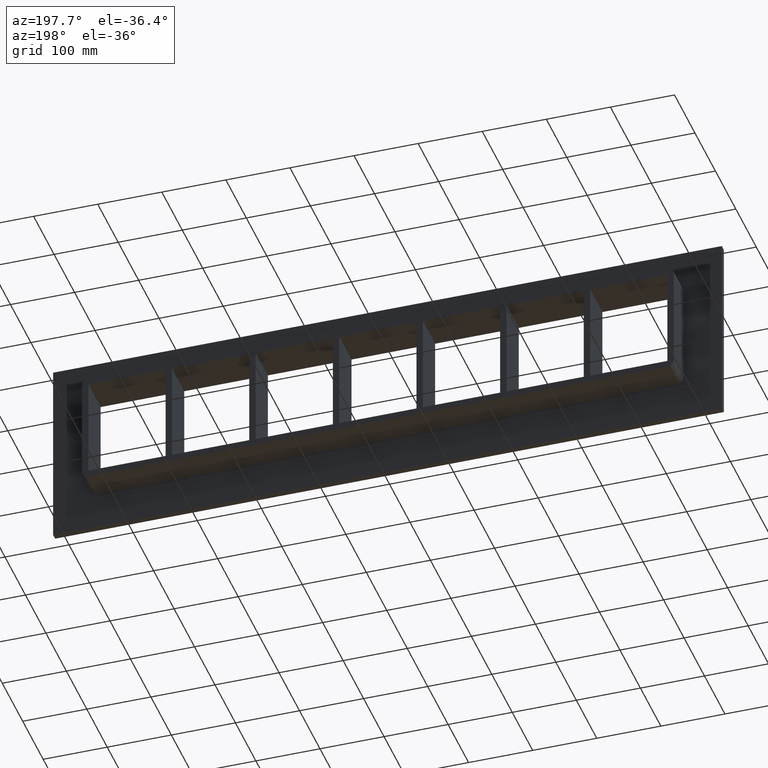
[diagram: clean part render]
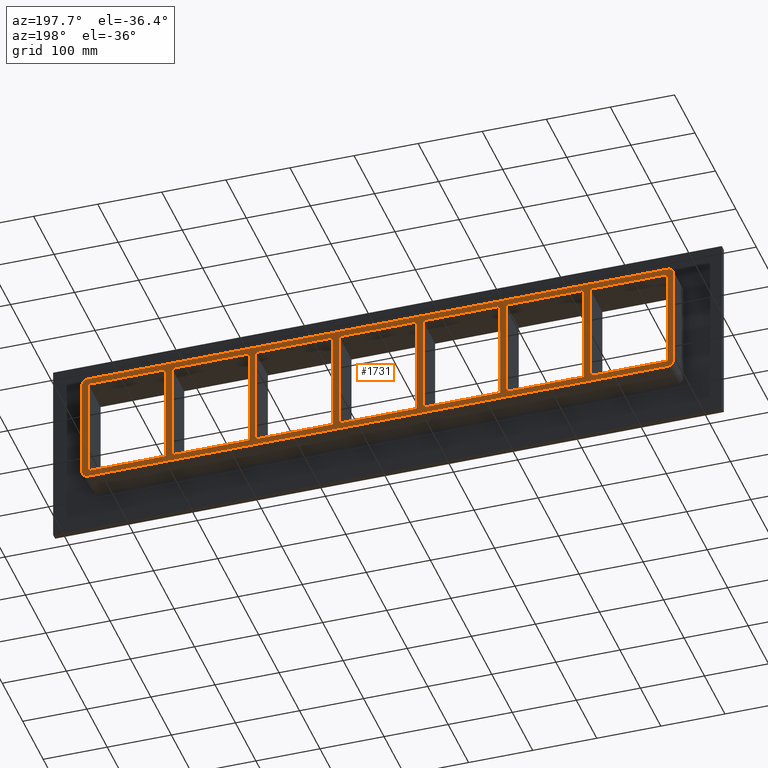
[diagram: same view with one face highlighted and labeled with its STEP entity id]
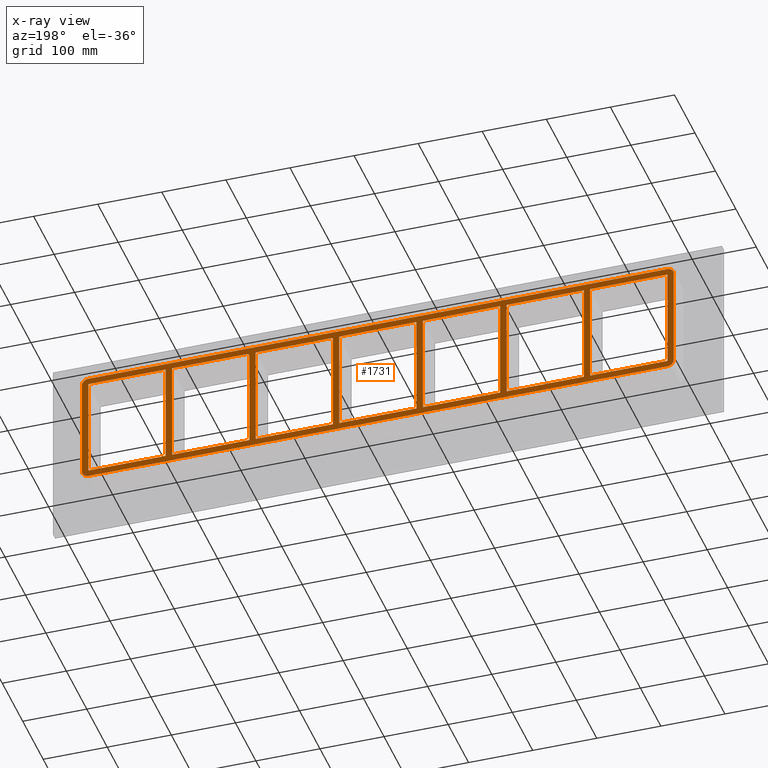
[diagram: x-ray of the same camera — body ghosted, the highlighted face saturated]
A machine part, auxiliary view. The second image highlights one B-rep face of the part: STEP entity #1731.
The next image is the same camera in x-ray: the body ghosted, the highlighted face saturated — about 0% of this face is hidden behind the body in this view.
In plain terms, the highlighted planar face has unit normal (0, 1, 0).
Its self-contained STEP definition (entity closure, byte-faithful):
#83=CARTESIAN_POINT('',(321.24999999999858,57.0,79.750000000000014));
#84=VERTEX_POINT('',#83);
#91=CARTESIAN_POINT('',(321.24999999999858,57.0,-79.75));
#92=VERTEX_POINT('',#91);
#93=CARTESIAN_POINT('',(321.24999999999858,57.0,-79.75));
#94=DIRECTION('',(0.0,0.0,1.0));
#95=VECTOR('',#94,159.5);
#96=LINE('',#93,#95);
#97=EDGE_CURVE('',#92,#84,#96,.T.);
#123=CARTESIAN_POINT('',(331.25,57.0,-79.749999999984055));
#124=VERTEX_POINT('',#123);
#131=CARTESIAN_POINT('',(331.25,57.0,79.750000000000014));
#132=VERTEX_POINT('',#131);
#133=CARTESIAN_POINT('',(331.25,57.0,79.750000000000014));
#134=DIRECTION('',(0.0,0.0,-1.0));
#135=VECTOR('',#134,159.49999999998408);
#136=LINE('',#133,#135);
#137=EDGE_CURVE('',#132,#124,#136,.T.);
#163=CARTESIAN_POINT('',(190.74999999999858,57.0,79.750000000000014));
#164=VERTEX_POINT('',#163);
#171=CARTESIAN_POINT('',(190.74999999999864,57.0,-79.75));
#172=VERTEX_POINT('',#171);
#173=CARTESIAN_POINT('',(190.74999999999864,57.0,-79.75));
#174=DIRECTION('',(0.0,0.0,1.0));
#175=VECTOR('',#174,159.5);
#176=LINE('',#173,#175);
#177=EDGE_CURVE('',#172,#164,#176,.T.);
#203=CARTESIAN_POINT('',(200.75000000000006,57.0,-79.749999999984055));
#204=VERTEX_POINT('',#203);
#211=CARTESIAN_POINT('',(200.75000000000006,57.0,79.750000000000014));
#212=VERTEX_POINT('',#211);
#213=CARTESIAN_POINT('',(200.75000000000006,57.0,79.750000000000014));
#214=DIRECTION('',(0.0,0.0,-1.0));
#215=VECTOR('',#214,159.49999999998408);
#216=LINE('',#213,#215);
#217=EDGE_CURVE('',#212,#204,#216,.T.);
#243=CARTESIAN_POINT('',(60.249999999998565,57.0,79.750000000000014));
#244=VERTEX_POINT('',#243);
#251=CARTESIAN_POINT('',(60.249999999998636,57.0,-79.75));
#252=VERTEX_POINT('',#251);
#253=CARTESIAN_POINT('',(60.249999999998636,57.0,-79.75));
#254=DIRECTION('',(0.0,0.0,1.0));
#255=VECTOR('',#254,159.5);
#256=LINE('',#253,#255);
#257=EDGE_CURVE('',#252,#244,#256,.T.);
#283=CARTESIAN_POINT('',(70.250000000000057,57.0,-79.749999999984055));
#284=VERTEX_POINT('',#283);
#291=CARTESIAN_POINT('',(70.250000000000057,57.0,79.750000000000014));
#292=VERTEX_POINT('',#291);
#293=CARTESIAN_POINT('',(70.250000000000057,57.0,79.750000000000014));
#294=DIRECTION('',(0.0,0.0,-1.0));
#295=VECTOR('',#294,159.49999999998408);
#296=LINE('',#293,#295);
#297=EDGE_CURVE('',#292,#284,#296,.T.);
#323=CARTESIAN_POINT('',(-70.250000000001478,57.0,79.750000000000014));
#324=VERTEX_POINT('',#323);
#331=CARTESIAN_POINT('',(-70.250000000001407,57.0,-79.75));
#332=VERTEX_POINT('',#331);
#333=CARTESIAN_POINT('',(-70.250000000001407,57.0,-79.75));
#334=DIRECTION('',(0.0,0.0,1.0));
#335=VECTOR('',#334,159.5);
#336=LINE('',#333,#335);
#337=EDGE_CURVE('',#332,#324,#336,.T.);
#363=CARTESIAN_POINT('',(-60.249999999999986,57.0,-79.749999999984055));
#364=VERTEX_POINT('',#363);
#371=CARTESIAN_POINT('',(-60.249999999999986,57.0,79.750000000000014));
#372=VERTEX_POINT('',#371);
#373=CARTESIAN_POINT('',(-60.249999999999986,57.0,79.750000000000014));
#374=DIRECTION('',(0.0,0.0,-1.0));
#375=VECTOR('',#374,159.49999999998408);
#376=LINE('',#373,#375);
#377=EDGE_CURVE('',#372,#364,#376,.T.);
#403=CARTESIAN_POINT('',(-200.75000000000148,57.0,79.750000000000014));
#404=VERTEX_POINT('',#403);
#411=CARTESIAN_POINT('',(-200.75000000000142,57.0,-79.75));
#412=VERTEX_POINT('',#411);
#413=CARTESIAN_POINT('',(-200.75000000000142,57.0,-79.75));
#414=DIRECTION('',(0.0,0.0,1.0));
#415=VECTOR('',#414,159.5);
#416=LINE('',#413,#415);
#417=EDGE_CURVE('',#412,#404,#416,.T.);
#443=CARTESIAN_POINT('',(-190.75,57.0,-79.749999999984055));
#444=VERTEX_POINT('',#443);
#451=CARTESIAN_POINT('',(-190.75,57.0,79.750000000000014));
#452=VERTEX_POINT('',#451);
#453=CARTESIAN_POINT('',(-190.75,57.0,79.750000000000014));
#454=DIRECTION('',(0.0,0.0,-1.0));
#455=VECTOR('',#454,159.49999999998408);
#456=LINE('',#453,#455);
#457=EDGE_CURVE('',#452,#444,#456,.T.);
#474=CARTESIAN_POINT('',(-321.25,57.0,-79.749999999984055));
#475=VERTEX_POINT('',#474);
#476=CARTESIAN_POINT('',(-321.24999999999994,57.0,-79.75));
#477=DIRECTION('',(1.0,0.0,0.0));
#478=VECTOR('',#477,120.49999999999852);
#479=LINE('',#476,#478);
#480=EDGE_CURVE('',#475,#412,#479,.T.);
#505=CARTESIAN_POINT('',(-190.75000000000006,57.0,-79.75));
#506=DIRECTION('',(1.0,0.0,0.0));
#507=VECTOR('',#506,120.49999999999864);
#508=LINE('',#505,#507);
#509=EDGE_CURVE('',#444,#332,#508,.T.);
#527=CARTESIAN_POINT('',(-60.25,57.0,-79.75));
#528=DIRECTION('',(1.0,0.0,0.0));
#529=VECTOR('',#528,120.49999999999864);
#530=LINE('',#527,#529);
#531=EDGE_CURVE('',#364,#252,#530,.T.);
#549=CARTESIAN_POINT('',(70.250000000000057,57.0,-79.75));
#550=DIRECTION('',(1.0,0.0,0.0));
#551=VECTOR('',#550,120.49999999999858);
#552=LINE('',#549,#551);
#553=EDGE_CURVE('',#284,#172,#552,.T.);
#571=CARTESIAN_POINT('',(200.75000000000006,57.0,-79.75));
#572=DIRECTION('',(1.0,0.0,0.0));
#573=VECTOR('',#572,120.49999999999852);
#574=LINE('',#571,#573);
#575=EDGE_CURVE('',#204,#92,#574,.T.);
#601=CARTESIAN_POINT('',(451.75000000000011,57.0,-79.75));
#602=VERTEX_POINT('',#601);
#609=CARTESIAN_POINT('',(331.25,57.0,-79.75));
#610=DIRECTION('',(1.0,0.0,0.0));
#611=VECTOR('',#610,120.50000000000011);
#612=LINE('',#609,#611);
#613=EDGE_CURVE('',#124,#602,#612,.T.);
#632=CARTESIAN_POINT('',(-321.25,57.0,79.750000000000014));
#633=VERTEX_POINT('',#632);
#640=CARTESIAN_POINT('',(-200.75000000000148,57.0,79.750000000000014));
#641=DIRECTION('',(-1.0,0.0,0.0));
#642=VECTOR('',#641,120.49999999999852);
#643=LINE('',#640,#642);
#644=EDGE_CURVE('',#404,#633,#643,.T.);
#662=CARTESIAN_POINT('',(-70.250000000001478,57.0,79.750000000000014));
#663=DIRECTION('',(-1.0,0.0,0.0));
#664=VECTOR('',#663,120.49999999999852);
#665=LINE('',#662,#664);
#666=EDGE_CURVE('',#324,#452,#665,.T.);
#684=CARTESIAN_POINT('',(60.24999999999855,57.0,79.750000000000014));
#685=DIRECTION('',(-1.0,0.0,0.0));
#686=VECTOR('',#685,120.49999999999855);
#687=LINE('',#684,#686);
#688=EDGE_CURVE('',#244,#372,#687,.T.);
#706=CARTESIAN_POINT('',(190.74999999999855,57.0,79.750000000000014));
#707=DIRECTION('',(-1.0,0.0,0.0));
#708=VECTOR('',#707,120.49999999999852);
#709=LINE('',#706,#708);
#710=EDGE_CURVE('',#164,#292,#709,.T.);
#721=CARTESIAN_POINT('',(451.75000000000011,57.0,79.750000000000014));
#722=VERTEX_POINT('',#721);
#723=CARTESIAN_POINT('',(451.75000000000023,57.0,79.750000000000014));
#724=DIRECTION('',(-1.0,0.0,0.0));
#725=VECTOR('',#724,120.50000000000023);
#726=LINE('',#723,#725);
#727=EDGE_CURVE('',#722,#132,#726,.T.);
#759=CARTESIAN_POINT('',(321.24999999999864,57.0,79.750000000000014));
#760=DIRECTION('',(-1.0,0.0,0.0));
#761=VECTOR('',#760,120.49999999999855);
#762=LINE('',#759,#761);
#763=EDGE_CURVE('',#84,#212,#762,.T.);
#783=CARTESIAN_POINT('',(-331.25000000000148,57.0,79.750000000000014));
#784=VERTEX_POINT('',#783);
#791=CARTESIAN_POINT('',(-331.25000000000142,57.0,-79.75));
#792=VERTEX_POINT('',#791);
#793=CARTESIAN_POINT('',(-331.25000000000142,57.0,-79.75));
#794=DIRECTION('',(0.0,0.0,1.0));
#795=VECTOR('',#794,159.5);
#796=LINE('',#793,#795);
#797=EDGE_CURVE('',#792,#784,#796,.T.);
#820=CARTESIAN_POINT('',(-321.25,57.0,79.750000000000014));
#821=DIRECTION('',(0.0,0.0,-1.0));
#822=VECTOR('',#821,159.49999999998408);
#823=LINE('',#820,#822);
#824=EDGE_CURVE('',#633,#475,#823,.T.);
#836=CARTESIAN_POINT('',(-451.75000000000011,57.0,-79.75));
#837=VERTEX_POINT('',#836);
#838=CARTESIAN_POINT('',(-451.75000000000017,57.0,-79.75));
#839=DIRECTION('',(1.0,0.0,0.0));
#840=VECTOR('',#839,120.49999999999875);
#841=LINE('',#838,#840);
#842=EDGE_CURVE('',#837,#792,#841,.T.);
#875=CARTESIAN_POINT('',(-451.75000000000011,57.0,79.750000000000014));
#876=VERTEX_POINT('',#875);
#883=CARTESIAN_POINT('',(-331.25000000000148,57.0,79.750000000000014));
#884=DIRECTION('',(-1.0,0.0,0.0));
#885=VECTOR('',#884,120.49999999999864);
#886=LINE('',#883,#885);
#887=EDGE_CURVE('',#784,#876,#886,.T.);
#1186=CARTESIAN_POINT('',(-451.75000000000006,57.0,79.750000000000028));
#1187=DIRECTION('',(0.0,0.0,-1.0));
#1188=VECTOR('',#1187,159.50000000000003);
#1189=LINE('',#1186,#1188);
#1190=EDGE_CURVE('',#876,#837,#1189,.T.);
#1240=CARTESIAN_POINT('',(461.75000000000006,57.0,79.750000000000014));
#1241=VERTEX_POINT('',#1240);
#1248=CARTESIAN_POINT('',(451.75000000000006,57.0,89.750000000000014));
#1249=VERTEX_POINT('',#1248);
#1250=CARTESIAN_POINT('',(451.75000000000006,57.0,79.750000000000014));
#1251=DIRECTION('',(0.0,-1.0,0.0));
#1252=DIRECTION('',(0.707106781186547,0.0,0.707106781186547));
#1253=AXIS2_PLACEMENT_3D('',#1250,#1251,#1252);
#1254=CIRCLE('',#1253,9.999999999999998);
#1255=EDGE_CURVE('',#1241,#1249,#1254,.T.);
#1296=CARTESIAN_POINT('',(461.75000000000006,57.0,-79.750000000000014));
#1297=VERTEX_POINT('',#1296);
#1304=CARTESIAN_POINT('',(461.75000000000006,57.0,79.750000000000014));
#1305=DIRECTION('',(0.0,0.0,-1.0));
#1306=VECTOR('',#1305,159.50000000000003);
#1307=LINE('',#1304,#1306);
#1308=EDGE_CURVE('',#1241,#1297,#1307,.T.);
#1369=CARTESIAN_POINT('',(451.75000000000006,57.0,-89.750000000000014));
#1370=VERTEX_POINT('',#1369);
#1377=CARTESIAN_POINT('',(451.75000000000006,57.0,-79.750000000000014));
#1378=DIRECTION('',(0.0,-1.0,0.0));
#1379=DIRECTION('',(0.707106781186547,0.0,-0.707106781186547));
#1380=AXIS2_PLACEMENT_3D('',#1377,#1378,#1379);
#1381=CIRCLE('',#1380,9.999999999999998);
#1382=EDGE_CURVE('',#1370,#1297,#1381,.T.);
#1443=CARTESIAN_POINT('',(-451.75000000000006,57.0,-89.750000000000014));
#1444=VERTEX_POINT('',#1443);
#1451=CARTESIAN_POINT('',(451.75000000000006,57.0,-89.750000000000014));
#1452=DIRECTION('',(-1.0,0.0,0.0));
#1453=VECTOR('',#1452,903.50000000000011);
#1454=LINE('',#1451,#1453);
#1455=EDGE_CURVE('',#1370,#1444,#1454,.T.);
#1572=CARTESIAN_POINT('',(-461.75000000000006,57.0,-79.750000000000014));
#1573=VERTEX_POINT('',#1572);
#1580=CARTESIAN_POINT('',(-451.75000000000006,57.0,-79.750000000000014));
#1581=DIRECTION('',(0.0,-1.0,0.0));
#1582=DIRECTION('',(-0.707106781186547,0.0,-0.707106781186547));
#1583=AXIS2_PLACEMENT_3D('',#1580,#1581,#1582);
#1584=CIRCLE('',#1583,9.999999999999998);
#1585=EDGE_CURVE('',#1573,#1444,#1584,.T.);
#1597=CARTESIAN_POINT('',(-461.75000000000006,57.0,79.750000000000014));
#1598=VERTEX_POINT('',#1597);
#1605=CARTESIAN_POINT('',(-461.75000000000006,57.0,-79.750000000000014));
#1606=DIRECTION('',(0.0,0.0,1.0));
#1607=VECTOR('',#1606,159.50000000000003);
#1608=LINE('',#1605,#1607);
#1609=EDGE_CURVE('',#1573,#1598,#1608,.T.);
#1621=CARTESIAN_POINT('',(-451.75000000000006,57.0,89.750000000000014));
#1622=VERTEX_POINT('',#1621);
#1629=CARTESIAN_POINT('',(-451.75000000000006,57.0,79.750000000000014));
#1630=DIRECTION('',(0.0,-1.0,0.0));
#1631=DIRECTION('',(-0.707106781186547,0.0,0.707106781186547));
#1632=AXIS2_PLACEMENT_3D('',#1629,#1630,#1631);
#1633=CIRCLE('',#1632,9.999999999999998);
#1634=EDGE_CURVE('',#1622,#1598,#1633,.T.);
#1647=CARTESIAN_POINT('',(-451.75000000000006,57.0,89.750000000000014));
#1648=DIRECTION('',(1.0,0.0,0.0));
#1649=VECTOR('',#1648,903.50000000000011);
#1650=LINE('',#1647,#1649);
#1651=EDGE_CURVE('',#1622,#1249,#1650,.T.);
#1665=CARTESIAN_POINT('',(451.75000000000011,57.0,-79.75));
#1666=DIRECTION('',(0.0,0.0,1.0));
#1667=VECTOR('',#1666,159.5);
#1668=LINE('',#1665,#1667);
#1669=EDGE_CURVE('',#602,#722,#1668,.T.);
#1674=CARTESIAN_POINT('',(0.0,57.0,0.0));
#1675=DIRECTION('',(0.0,1.0,0.0));
#1676=DIRECTION('',(0.0,0.0,1.0));
#1677=AXIS2_PLACEMENT_3D('',#1674,#1675,#1676);
#1678=PLANE('',#1677);
#1679=ORIENTED_EDGE('',*,*,#1382,.F.);
#1680=ORIENTED_EDGE('',*,*,#1455,.T.);
#1681=ORIENTED_EDGE('',*,*,#1585,.F.);
#1682=ORIENTED_EDGE('',*,*,#1609,.T.);
#1683=ORIENTED_EDGE('',*,*,#1634,.F.);
#1684=ORIENTED_EDGE('',*,*,#1651,.T.);
#1685=ORIENTED_EDGE('',*,*,#1255,.F.);
#1686=ORIENTED_EDGE('',*,*,#1308,.T.);
#1687=EDGE_LOOP('',(#1679,#1680,#1681,#1682,#1683,#1684,#1685,#1686));
#1688=FACE_OUTER_BOUND('',#1687,.T.);
#1689=ORIENTED_EDGE('',*,*,#613,.T.);
#1690=ORIENTED_EDGE('',*,*,#1669,.T.);
#1691=ORIENTED_EDGE('',*,*,#727,.T.);
#1692=ORIENTED_EDGE('',*,*,#137,.T.);
#1693=EDGE_LOOP('',(#1689,#1690,#1691,#1692));
#1694=FACE_BOUND('',#1693,.T.);
#1695=ORIENTED_EDGE('',*,*,#97,.T.);
#1696=ORIENTED_EDGE('',*,*,#763,.T.);
#1697=ORIENTED_EDGE('',*,*,#217,.T.);
#1698=ORIENTED_EDGE('',*,*,#575,.T.);
#1699=EDGE_LOOP('',(#1695,#1696,#1697,#1698));
#1700=FACE_BOUND('',#1699,.T.);
#1701=ORIENTED_EDGE('',*,*,#177,.T.);
#1702=ORIENTED_EDGE('',*,*,#710,.T.);
#1703=ORIENTED_EDGE('',*,*,#297,.T.);
#1704=ORIENTED_EDGE('',*,*,#553,.T.);
#1705=EDGE_LOOP('',(#1701,#1702,#1703,#1704));
#1706=FACE_BOUND('',#1705,.T.);
#1707=ORIENTED_EDGE('',*,*,#257,.T.);
#1708=ORIENTED_EDGE('',*,*,#688,.T.);
#1709=ORIENTED_EDGE('',*,*,#377,.T.);
#1710=ORIENTED_EDGE('',*,*,#531,.T.);
#1711=EDGE_LOOP('',(#1707,#1708,#1709,#1710));
#1712=FACE_BOUND('',#1711,.T.);
#1713=ORIENTED_EDGE('',*,*,#337,.T.);
#1714=ORIENTED_EDGE('',*,*,#666,.T.);
#1715=ORIENTED_EDGE('',*,*,#457,.T.);
#1716=ORIENTED_EDGE('',*,*,#509,.T.);
#1717=EDGE_LOOP('',(#1713,#1714,#1715,#1716));
#1718=FACE_BOUND('',#1717,.T.);
#1719=ORIENTED_EDGE('',*,*,#417,.T.);
#1720=ORIENTED_EDGE('',*,*,#644,.T.);
#1721=ORIENTED_EDGE('',*,*,#824,.T.);
#1722=ORIENTED_EDGE('',*,*,#480,.T.);
#1723=EDGE_LOOP('',(#1719,#1720,#1721,#1722));
#1724=FACE_BOUND('',#1723,.T.);
#1725=ORIENTED_EDGE('',*,*,#797,.T.);
#1726=ORIENTED_EDGE('',*,*,#887,.T.);
#1727=ORIENTED_EDGE('',*,*,#1190,.T.);
#1728=ORIENTED_EDGE('',*,*,#842,.T.);
#1729=EDGE_LOOP('',(#1725,#1726,#1727,#1728));
#1730=FACE_BOUND('',#1729,.T.);
#1731=ADVANCED_FACE('',(#1688,#1694,#1700,#1706,#1712,#1718,#1724,#1730),#1678,.T.);